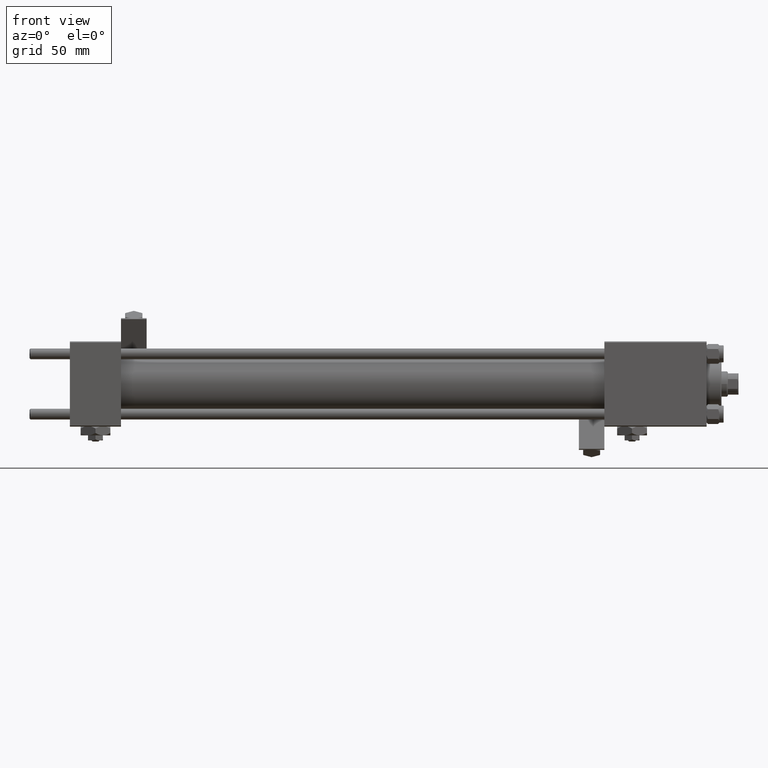
[diagram: clean part render]
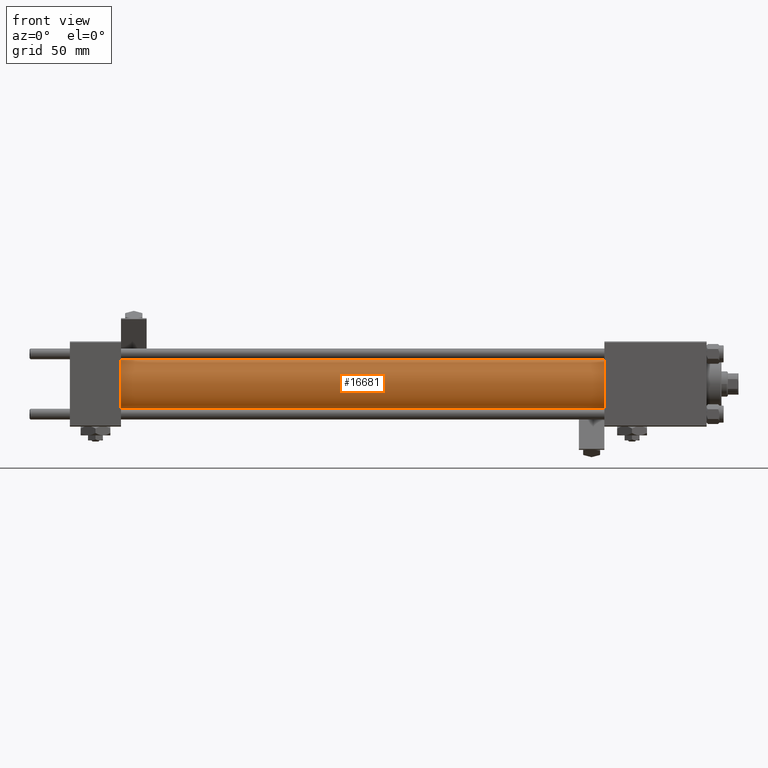
[diagram: same view with one face highlighted and labeled with its STEP entity id]
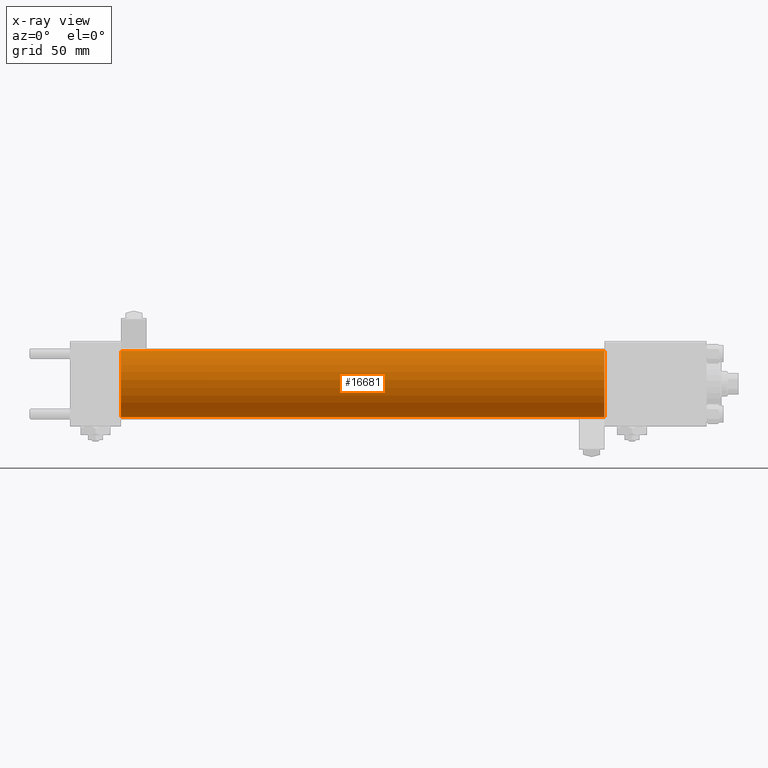
[diagram: x-ray of the same camera — body ghosted, the highlighted face saturated]
A machine part, front view. The second image highlights one B-rep face of the part: STEP entity #16681.
The next image is the same camera in x-ray: the body ghosted, the highlighted face saturated — about 0% of this face is hidden behind the body in this view.
In plain terms, the highlighted cylindrical surface (edge-blend (fillet) strip) has radius 15.5 mm, axis along (-1, -0, -0).
Its self-contained STEP definition (entity closure, byte-faithful):
#1866 = DIRECTION ( 'NONE',  ( 0.000000000000000000, 0.000000000000000000, 1.000000000000000000 ) ) ;
#2351 = CIRCLE ( 'NONE', #24506, 15.50000000000000000 ) ;
#4536 = CARTESIAN_POINT ( 'NONE',  ( 251.0000000000000000, 0.000000000000000000, 0.000000000000000000 ) ) ;
#4803 = DIRECTION ( 'NONE',  ( 1.000000000000000000, 0.000000000000000000, 0.000000000000000000 ) ) ;
#4973 = VERTEX_POINT ( 'NONE', #10799 ) ;
#5600 = CARTESIAN_POINT ( 'NONE',  ( 23.99999999999999289, 0.000000000000000000, 0.000000000000000000 ) ) ;
#6893 = AXIS2_PLACEMENT_3D ( 'NONE', #4536, #4803, #45683 ) ;
#8512 = VERTEX_POINT ( 'NONE', #28472 ) ;
#9592 = CARTESIAN_POINT ( 'NONE',  ( 251.0000000000000000, 0.000000000000000000, 15.50000000000000000 ) ) ;
#10280 = EDGE_CURVE ( 'NONE', #48518, #8512, #37662, .T. ) ;
#10369 = DIRECTION ( 'NONE',  ( 0.000000000000000000, 0.000000000000000000, 1.000000000000000000 ) ) ;
#10799 = CARTESIAN_POINT ( 'NONE',  ( 23.99999999999999289, 1.898202538678397163E-15, -15.50000000000000000 ) ) ;
#14935 = ORIENTED_EDGE ( 'NONE', *, *, #25678, .T. ) ;
#16681 = ADVANCED_FACE ( 'NONE', ( #50209 ), #43241, .T. ) ;
#18384 = AXIS2_PLACEMENT_3D ( 'NONE', #22915, #34180, #10369 ) ;
#21922 = ORIENTED_EDGE ( 'NONE', *, *, #46437, .F. ) ;
#22143 = DIRECTION ( 'NONE',  ( -1.000000000000000000, -0.000000000000000000, -0.000000000000000000 ) ) ;
#22327 = LINE ( 'NONE', #34632, #50491 ) ;
#22683 = DIRECTION ( 'NONE',  ( 1.000000000000000000, 0.000000000000000000, 0.000000000000000000 ) ) ;
#22915 = CARTESIAN_POINT ( 'NONE',  ( 251.0000000000000000, 0.000000000000000000, 0.000000000000000000 ) ) ;
#24506 = AXIS2_PLACEMENT_3D ( 'NONE', #5600, #22683, #1866 ) ;
#25678 = EDGE_CURVE ( 'NONE', #8512, #4973, #2351, .T. ) ;
#25951 = VERTEX_POINT ( 'NONE', #50168 ) ;
#26530 = ORIENTED_EDGE ( 'NONE', *, *, #44955, .F. ) ;
#28040 = EDGE_LOOP ( 'NONE', ( #26530, #21922, #50897, #14935 ) ) ;
#28472 = CARTESIAN_POINT ( 'NONE',  ( 23.99999999999999289, 0.000000000000000000, 15.50000000000000000 ) ) ;
#34180 = DIRECTION ( 'NONE',  ( -1.000000000000000000, -0.000000000000000000, -0.000000000000000000 ) ) ;
#34632 = CARTESIAN_POINT ( 'NONE',  ( 251.0000000000000000, 1.898202538678397163E-15, -15.50000000000000000 ) ) ;
#37662 = LINE ( 'NONE', #9592, #51402 ) ;
#43241 = CYLINDRICAL_SURFACE ( 'NONE', #18384, 15.50000000000000000 ) ;
#44955 = EDGE_CURVE ( 'NONE', #25951, #4973, #22327, .T. ) ;
#45177 = CARTESIAN_POINT ( 'NONE',  ( 251.0000000000000000, 0.000000000000000000, 15.50000000000000000 ) ) ;
#45683 = DIRECTION ( 'NONE',  ( 0.000000000000000000, 0.000000000000000000, -1.000000000000000000 ) ) ;
#46437 = EDGE_CURVE ( 'NONE', #48518, #25951, #47127, .T. ) ;
#46913 = DIRECTION ( 'NONE',  ( -1.000000000000000000, -0.000000000000000000, -0.000000000000000000 ) ) ;
#47127 = CIRCLE ( 'NONE', #6893, 15.50000000000000000 ) ;
#48518 = VERTEX_POINT ( 'NONE', #45177 ) ;
#50168 = CARTESIAN_POINT ( 'NONE',  ( 251.0000000000000000, 1.898202538678397163E-15, -15.50000000000000000 ) ) ;
#50209 = FACE_OUTER_BOUND ( 'NONE', #28040, .T. ) ;
#50491 = VECTOR ( 'NONE', #46913, 1000.000000000000000 ) ;
#50897 = ORIENTED_EDGE ( 'NONE', *, *, #10280, .T. ) ;
#51402 = VECTOR ( 'NONE', #22143, 1000.000000000000000 ) ;